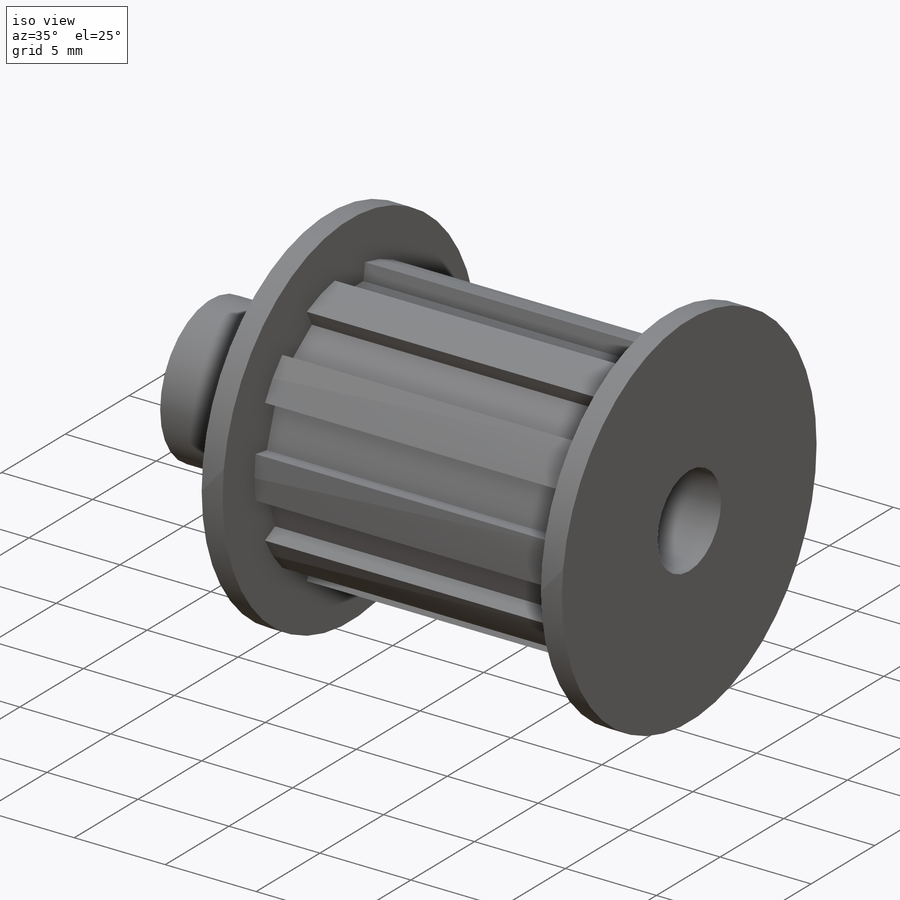
[diagram: iso view]
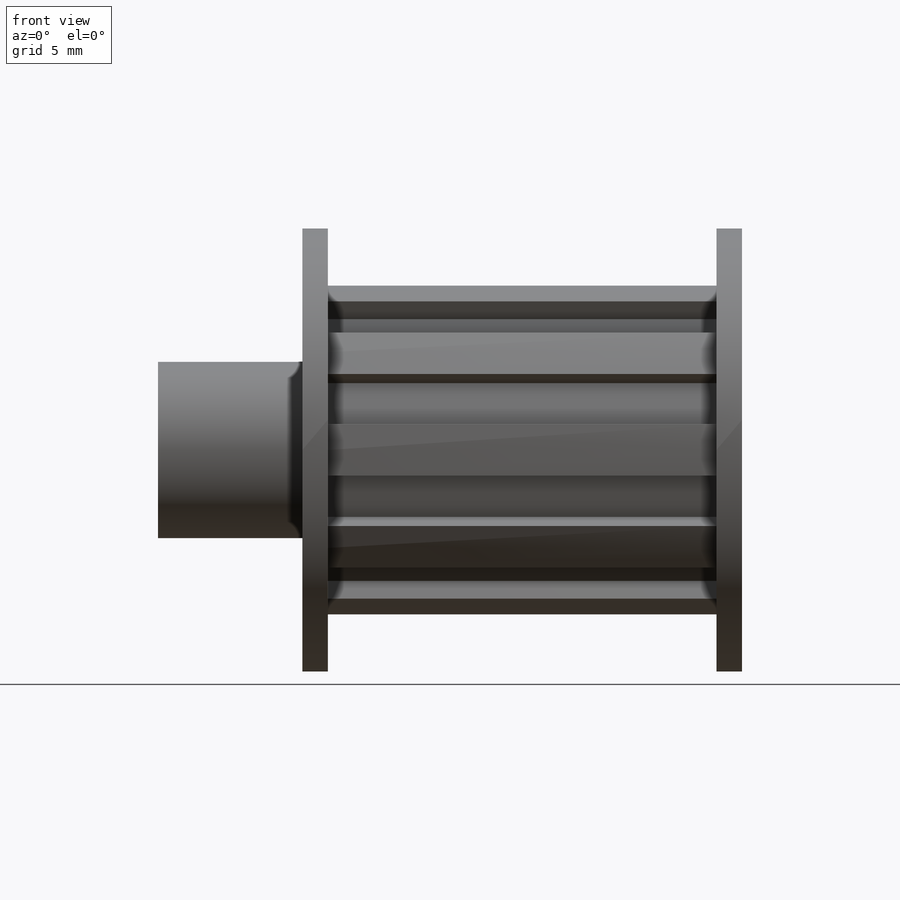
[diagram: front view]
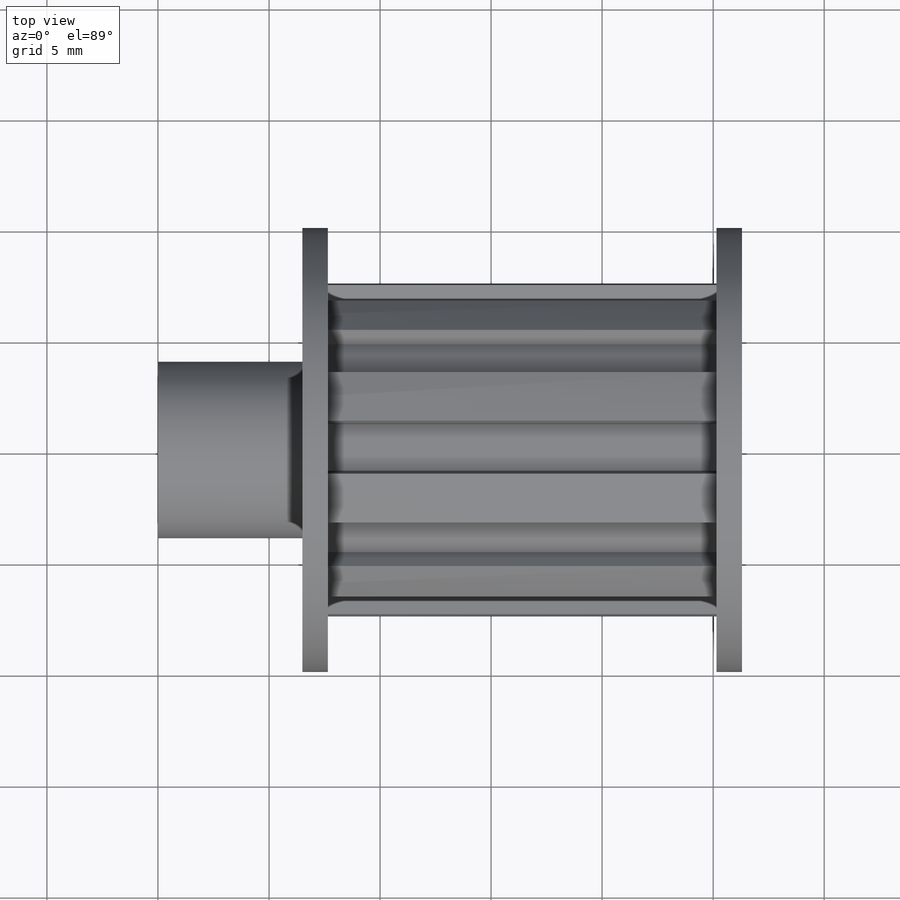
[diagram: top view]
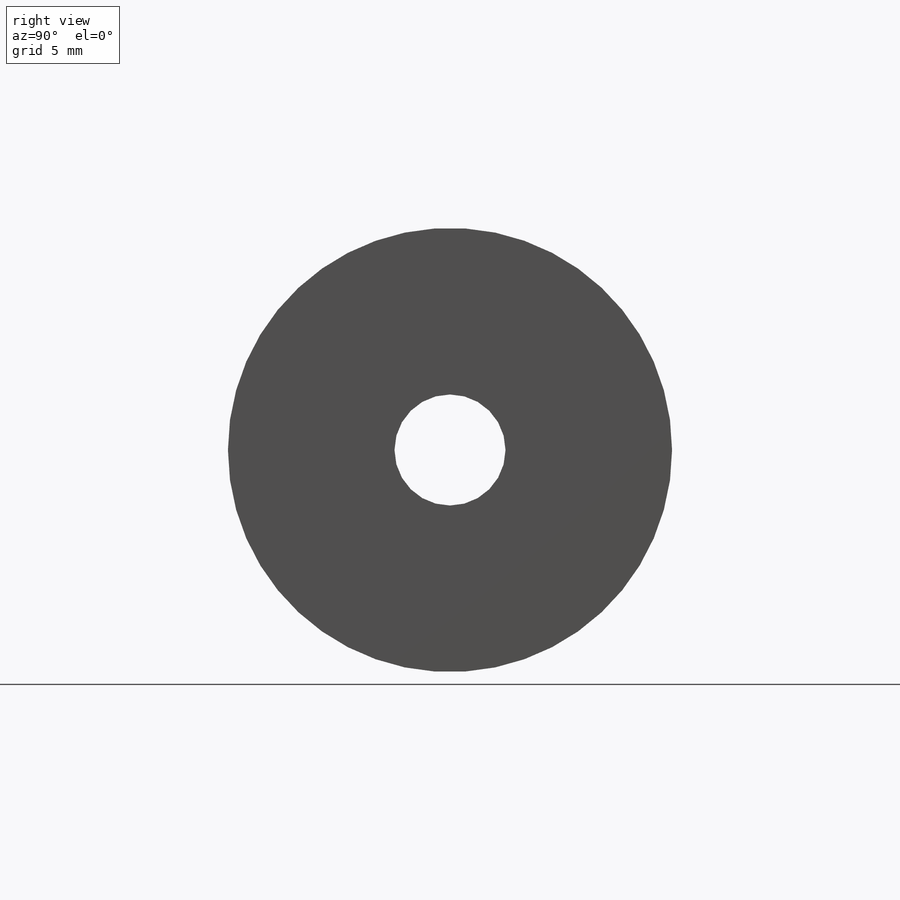
[diagram: right view]
SOLIDWORKS PART (.sldprt)
format: sldprt  version: not decoded by parser v0  size: 240,128 bytes
history: native  units: mm
features: sketch x6, extrude x4, plane x3, cut_extrude x2, material x1, pattern_circular x1 (+9 scaffold rows collapsed)
feature tree (26):
  scaffold x9  (default folders/planes/origin — collapsed)
  material  "Material <sin especificar>"
  plane  "Alzado"
  plane  "Planta"
  plane  "Vista lateral"
  sketch  "Croquis1"  dims[D1=7.95mm]
  extrude  "Saliente-Extruir1"  Depth=6.5mm
  sketch  "Croquis2"  dims[D1=20.0mm]
  extrude  "Saliente-Extruir2"  Depth=1.15mm
  sketch  "Croquis3"  dims[D1=15.0mm]
  extrude  "Saliente-Extruir3"  Depth=17.5mm
  sketch  "Croquis5"  dims[c1.D3=15.1mm c1.D1=~1.051682mm c1.D2=0.5mm c2.D1=1.05mm c2.D2=1.05mm c2.D4=0.5mm c2.D5=0.15mm c3.D4=0.15mm]
  cut_extrude  "Cortar-Extruir1"  [1 undecoded]
  pattern_circular  "MatrizC1"  Count=10 Angle=360deg
  sketch  "Croquis4"  dims[D1=20.0mm]
  extrude  "Saliente-Extruir4"  Depth=1.15mm
  sketch  "Croquis6"  dims[D1=5.0mm]
  cut_extrude  "Cortar-Extruir2"  [1 undecoded]
decode coverage: 11 of 13 modeling features carry decoded parameters
note: ~ marks probable driven/reference dimensions
note: 2 parameter values undecoded
note: suppression state not decoded; provenance and decode notes live in map.json
